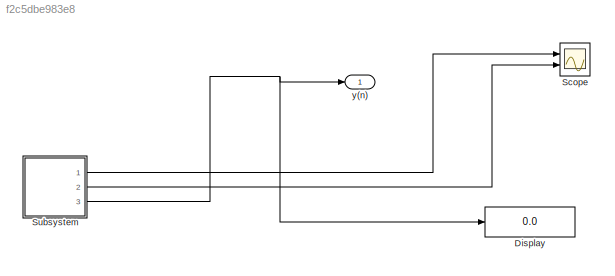
MODEL slx_f2c5dbe983e8
KIND model
CONFIG AbsTol = auto
CONFIG EnableMultiTasking = off
CONFIG FixedStep = auto
CONFIG MaxStep = auto
CONFIG MinStep = auto
CONFIG RelTol = 1e-3
CONFIG SampleTimeConstraint = Unconstrained
CONFIG Solver = VariableStepAuto
CONFIG SolverName = VariableStepAuto
CONFIG StartTime = 0.0
CONFIG StopTime = 10.0
WORKSPACE source: mxarray member
WORKSPACE A: Simulink.Parameter (value not decoded)
WORKSPACE B: Simulink.Parameter (value not decoded)
WORKSPACE C: Simulink.Parameter (value not decoded)
BLOCK [Display] Display
  Decimation = 1
  Ports = [1]
BLOCK [Scope] Scope
  Floating = off
  NumInputPorts = 2
  Ports = [2]
  ScopeSpecificationString = Simulink.scopes.TimeScopeBlockCfg('CurrentConfiguration', extmgr.ConfigurationSet(extmgr.Configuration('Core','General UI',true),extmgr.Configuration('Core','Source UI',true),extmgr.Configuration('Sources','WiredSimulink',true),extmgr.Configuration('Visuals','Time Domain',true,'SerializedDisplays',{struct('MinYLimReal','-0.2625','MaxYLimReal','2.3625','YLabelReal','','MinYLimMag','0.00000','MaxYLi...<+1368ch>
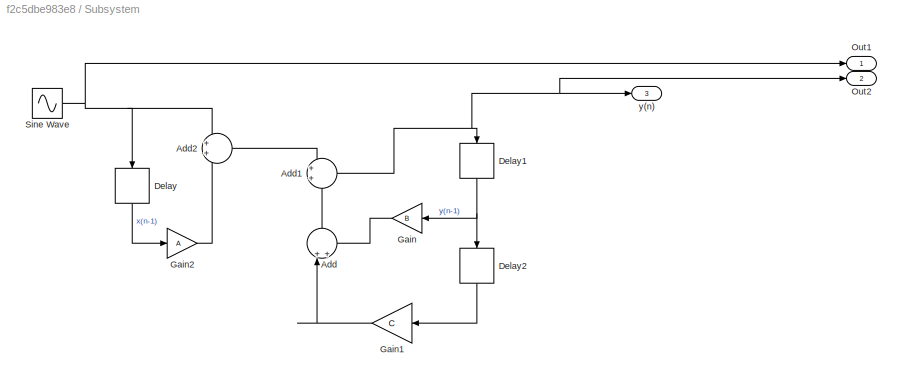
BLOCK [SubSystem] Subsystem
  Ports = [0, 3]
  RequestExecContextInheritance = off
BLOCK [Sum] Subsystem/Add
  NameLocation = right
  Ports = [2, 1]
BLOCK [Sum] Subsystem/Add1
  Ports = [2, 1]
BLOCK [Sum] Subsystem/Add2
  Ports = [2, 1]
BLOCK [Delay] Subsystem/Delay
  DelayLength = 1
  InputPortMap = u0
  NameLocation = left
  Ports = [1, 1]
BLOCK [Delay] Subsystem/Delay1
  DelayLength = 1
  InputPortMap = u0
  NameLocation = left
  Ports = [1, 1]
BLOCK [Delay] Subsystem/Delay2
  DelayLength = 1
  InputPortMap = u0
  NameLocation = left
  Ports = [1, 1]
BLOCK [Gain] Subsystem/Gain
  Gain = B
  NameLocation = top
BLOCK [Gain] Subsystem/Gain1
  Gain = C
  NameLocation = top
BLOCK [Gain] Subsystem/Gain2
  Gain = A
BLOCK [Outport] Subsystem/Out1
BLOCK [Outport] Subsystem/Out2
  Port = 2
BLOCK [Sin] Subsystem/Sine Wave
  Ports = [0, 1]
  SampleTime = 0
BLOCK [Outport] Subsystem/y(n)
  Port = 3
BLOCK [Outport] y(n)
NET Subsystem/Add1:1 -> Subsystem/Delay1:1, Subsystem/Out2:1, Subsystem/y(n):1
LINE Subsystem/Add2:1 -> Subsystem/Add1:1
LINE Subsystem/Add:1 -> Subsystem/Add1:2
NET Subsystem/Delay1:1 -> Subsystem/Delay2:1, Subsystem/Gain:1
LINE Subsystem/Delay2:1 -> Subsystem/Gain1:1
LINE Subsystem/Delay:1 -> Subsystem/Gain2:1
LINE Subsystem/Gain1:1 -> Subsystem/Add:1
LINE Subsystem/Gain2:1 -> Subsystem/Add2:2
LINE Subsystem/Gain:1 -> Subsystem/Add:2
NET Subsystem/Sine Wave:1 -> Subsystem/Add2:1, Subsystem/Delay:1, Subsystem/Out1:1
LINE Subsystem:1 -> Scope:1
LINE Subsystem:2 -> Scope:2
NET Subsystem:3 -> Display:1, y(n):1
note: NET lines group one-source signal fan-out (src -> all destinations, sorted); 1:1 wires keep LINE
